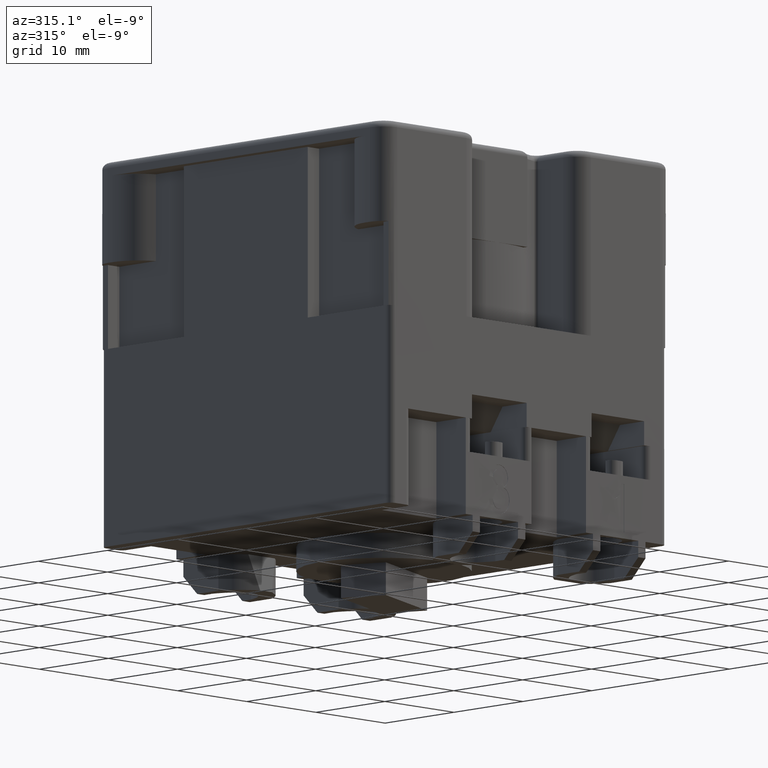
[diagram: clean part render]
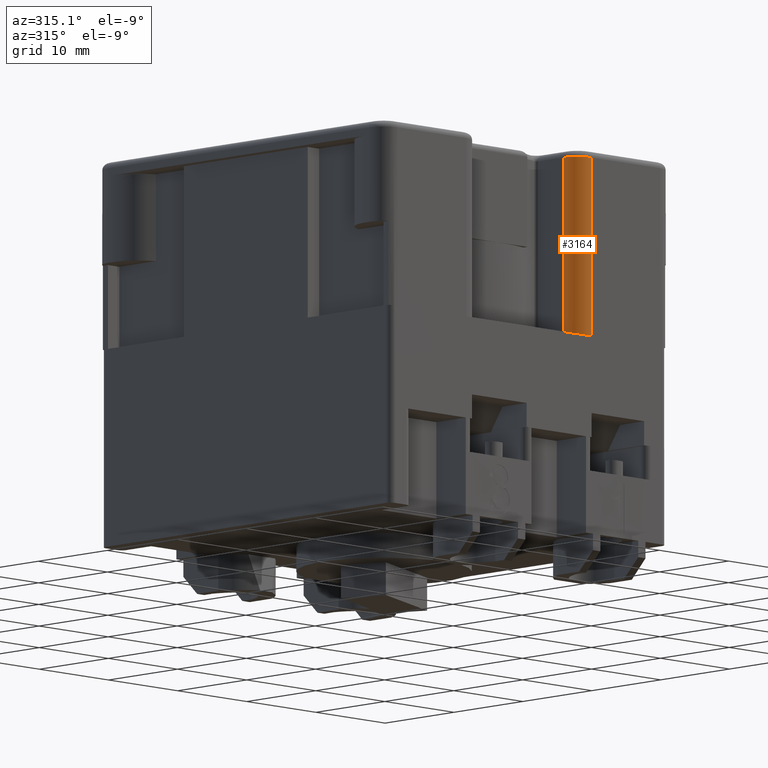
[diagram: same view with one face highlighted and labeled with its STEP entity id]
A machine part, auxiliary view. The second image highlights one B-rep face of the part: STEP entity #3164.
In plain terms, the highlighted cylindrical surface (edge-blend (fillet) strip) has radius 2 mm, axis along (0, 0, -1).
Its self-contained STEP definition (entity closure, byte-faithful):
#1400=CARTESIAN_POINT('',(9.0,-21.0,-0.699999999999999));
#1401=VERTEX_POINT('',#1400);
#1408=CARTESIAN_POINT('',(9.0,-21.0,-19.199999999999999));
#1409=VERTEX_POINT('',#1408);
#1410=CARTESIAN_POINT('',(9.0,-21.0,-0.699999999999999));
#1411=DIRECTION('',(0.0,0.0,-1.0));
#1412=VECTOR('',#1411,18.5);
#1413=LINE('',#1410,#1412);
#1414=EDGE_CURVE('',#1401,#1409,#1413,.T.);
#2113=CARTESIAN_POINT('',(7.000000000000001,-19.0,-19.199999999999999));
#2114=VERTEX_POINT('',#2113);
#2115=CARTESIAN_POINT('',(7.000000000000001,-19.0,-0.700000000000006));
#2116=VERTEX_POINT('',#2115);
#2117=CARTESIAN_POINT('',(7.000000000000001,-19.0,-19.199999999999996));
#2118=DIRECTION('',(0.0,0.0,1.0));
#2119=VECTOR('',#2118,18.499999999999989);
#2120=LINE('',#2117,#2119);
#2121=EDGE_CURVE('',#2114,#2116,#2120,.T.);
#3141=CARTESIAN_POINT('',(9.0,-19.0,-19.199999999999999));
#3142=DIRECTION('',(0.0,0.0,-1.0));
#3143=DIRECTION('',(-1.0,0.0,0.0));
#3144=AXIS2_PLACEMENT_3D('',#3141,#3142,#3143);
#3145=CYLINDRICAL_SURFACE('',#3144,2.0);
#3146=ORIENTED_EDGE('',*,*,#1414,.F.);
#3147=CARTESIAN_POINT('',(9.0,-19.0,-0.699999999999999));
#3148=DIRECTION('',(0.0,0.0,-1.0));
#3149=DIRECTION('',(1.0,0.0,0.0));
#3150=AXIS2_PLACEMENT_3D('',#3147,#3148,#3149);
#3151=CIRCLE('',#3150,2.0);
#3152=EDGE_CURVE('',#1401,#2116,#3151,.T.);
#3153=ORIENTED_EDGE('',*,*,#3152,.T.);
#3154=ORIENTED_EDGE('',*,*,#2121,.F.);
#3155=CARTESIAN_POINT('',(9.0,-19.0,-19.199999999999999));
#3156=DIRECTION('',(0.0,0.0,-1.0));
#3157=DIRECTION('',(1.0,0.0,0.0));
#3158=AXIS2_PLACEMENT_3D('',#3155,#3156,#3157);
#3159=CIRCLE('',#3158,2.0);
#3160=EDGE_CURVE('',#1409,#2114,#3159,.T.);
#3161=ORIENTED_EDGE('',*,*,#3160,.F.);
#3162=EDGE_LOOP('',(#3146,#3153,#3154,#3161));
#3163=FACE_OUTER_BOUND('',#3162,.T.);
#3164=ADVANCED_FACE('',(#3163),#3145,.T.);